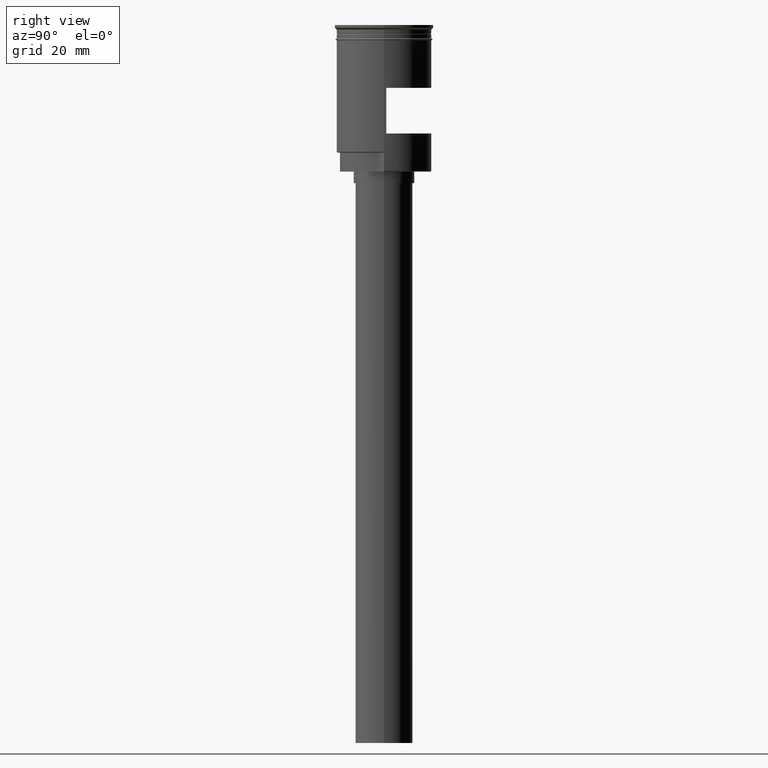
[diagram: clean part render]
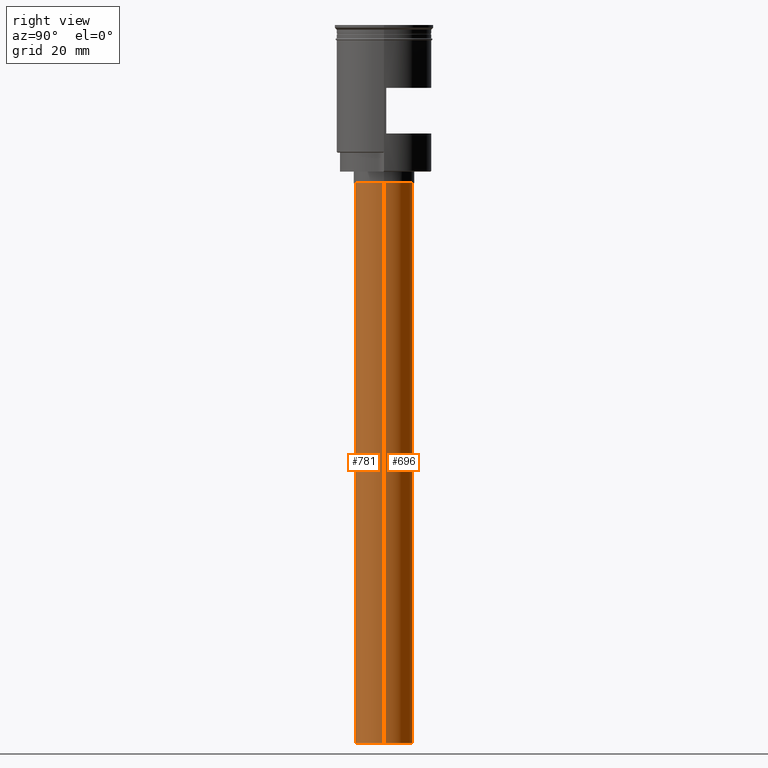
[diagram: same view with one multi-face feature highlighted, each face labeled with its STEP entity id]
A machine part, right view. The highlighted faces form ONE feature: a constant-radius fillet chain: 2 tangent blend faces with common blend radius 7.5 mm. The faces share edges in the B-rep.
Their STEP definitions:
[1] entity #696 (Cylinder):
#17 = CARTESIAN_POINT ( 'NONE',  ( -7.500000000000000000, 9.184850993605147944E-16, -188.5000000000000000 ) ) ;
#70 = DIRECTION ( 'NONE',  ( 1.000000000000000000, 0.000000000000000000, 0.000000000000000000 ) ) ;
#250 = DIRECTION ( 'NONE',  ( -1.000000000000000000, 0.000000000000000000, 0.000000000000000000 ) ) ;
#271 = CARTESIAN_POINT ( 'NONE',  ( 7.500000000000000000, 0.000000000000000000, -41.50000000000000000 ) ) ;
#347 = EDGE_CURVE ( 'NONE', #1243, #1359, #404, .T. ) ;
#353 = VECTOR ( 'NONE', #401, 1000.000000000000000 ) ;
#360 = CARTESIAN_POINT ( 'NONE',  ( -7.500000000000000000, 9.184850993605147944E-16, -41.50000000000000000 ) ) ;
#370 = ORIENTED_EDGE ( 'NONE', *, *, #903, .F. ) ;
#401 = DIRECTION ( 'NONE',  ( -0.000000000000000000, -0.000000000000000000, 1.000000000000000000 ) ) ;
#404 = CIRCLE ( 'NONE', #1304, 7.500000000000000000 ) ;
#437 = LINE ( 'NONE', #1529, #915 ) ;
#472 = CARTESIAN_POINT ( 'NONE',  ( 0.000000000000000000, 0.000000000000000000, -188.5000000000000000 ) ) ;
#500 = DIRECTION ( 'NONE',  ( 0.000000000000000000, 0.000000000000000000, -1.000000000000000000 ) ) ;
#552 = EDGE_CURVE ( 'NONE', #1373, #1243, #437, .T. ) ;
#626 = ORIENTED_EDGE ( 'NONE', *, *, #552, .T. ) ;
#640 = CARTESIAN_POINT ( 'NONE',  ( 7.500000000000000000, 0.000000000000000000, -188.5000000000000000 ) ) ;
#645 = DIRECTION ( 'NONE',  ( 0.000000000000000000, 0.000000000000000000, -1.000000000000000000 ) ) ;
#696 = ADVANCED_FACE ( 'NONE', ( #1561 ), #1085, .T. ) ;
#879 = LINE ( 'NONE', #640, #353 ) ;
#903 = EDGE_CURVE ( 'NONE', #1373, #1478, #1152, .T. ) ;
#915 = VECTOR ( 'NONE', #1423, 1000.000000000000000 ) ;
#933 = EDGE_CURVE ( 'NONE', #1478, #1359, #879, .T. ) ;
#962 = DIRECTION ( 'NONE',  ( -0.000000000000000000, -0.000000000000000000, 1.000000000000000000 ) ) ;
#1018 = DIRECTION ( 'NONE',  ( -1.000000000000000000, 0.000000000000000000, 0.000000000000000000 ) ) ;
#1084 = ORIENTED_EDGE ( 'NONE', *, *, #347, .T. ) ;
#1085 = CYLINDRICAL_SURFACE ( 'NONE', #1466, 7.500000000000000000 ) ;
#1152 = CIRCLE ( 'NONE', #1543, 7.500000000000000000 ) ;
#1159 = CARTESIAN_POINT ( 'NONE',  ( 0.000000000000000000, 0.000000000000000000, -188.5000000000000000 ) ) ;
#1191 = ORIENTED_EDGE ( 'NONE', *, *, #933, .F. ) ;
#1243 = VERTEX_POINT ( 'NONE', #360 ) ;
#1304 = AXIS2_PLACEMENT_3D ( 'NONE', #1590, #500, #250 ) ;
#1359 = VERTEX_POINT ( 'NONE', #271 ) ;
#1373 = VERTEX_POINT ( 'NONE', #17 ) ;
#1423 = DIRECTION ( 'NONE',  ( -0.000000000000000000, -0.000000000000000000, 1.000000000000000000 ) ) ;
#1427 = EDGE_LOOP ( 'NONE', ( #370, #626, #1084, #1191 ) ) ;
#1466 = AXIS2_PLACEMENT_3D ( 'NONE', #472, #962, #70 ) ;
#1478 = VERTEX_POINT ( 'NONE', #1564 ) ;
#1529 = CARTESIAN_POINT ( 'NONE',  ( -7.500000000000000000, 9.184850993605147944E-16, -188.5000000000000000 ) ) ;
#1543 = AXIS2_PLACEMENT_3D ( 'NONE', #1159, #645, #1018 ) ;
#1561 = FACE_OUTER_BOUND ( 'NONE', #1427, .T. ) ;
#1564 = CARTESIAN_POINT ( 'NONE',  ( 7.500000000000000000, 0.000000000000000000, -188.5000000000000000 ) ) ;
#1590 = CARTESIAN_POINT ( 'NONE',  ( 0.000000000000000000, 0.000000000000000000, -41.50000000000000000 ) ) ;
[2] entity #781 (Cylinder):
#2 = FACE_OUTER_BOUND ( 'NONE', #1502, .T. ) ;
#17 = CARTESIAN_POINT ( 'NONE',  ( -7.500000000000000000, 9.184850993605147944E-16, -188.5000000000000000 ) ) ;
#241 = DIRECTION ( 'NONE',  ( 0.000000000000000000, 0.000000000000000000, -1.000000000000000000 ) ) ;
#271 = CARTESIAN_POINT ( 'NONE',  ( 7.500000000000000000, 0.000000000000000000, -41.50000000000000000 ) ) ;
#336 = EDGE_CURVE ( 'NONE', #1359, #1243, #1413, .T. ) ;
#353 = VECTOR ( 'NONE', #401, 1000.000000000000000 ) ;
#360 = CARTESIAN_POINT ( 'NONE',  ( -7.500000000000000000, 9.184850993605147944E-16, -41.50000000000000000 ) ) ;
#401 = DIRECTION ( 'NONE',  ( -0.000000000000000000, -0.000000000000000000, 1.000000000000000000 ) ) ;
#407 = DIRECTION ( 'NONE',  ( -1.000000000000000000, 0.000000000000000000, 0.000000000000000000 ) ) ;
#431 = ORIENTED_EDGE ( 'NONE', *, *, #552, .F. ) ;
#437 = LINE ( 'NONE', #1529, #915 ) ;
#485 = DIRECTION ( 'NONE',  ( -1.000000000000000000, 0.000000000000000000, 0.000000000000000000 ) ) ;
#538 = AXIS2_PLACEMENT_3D ( 'NONE', #1141, #1404, #407 ) ;
#552 = EDGE_CURVE ( 'NONE', #1373, #1243, #437, .T. ) ;
#631 = CARTESIAN_POINT ( 'NONE',  ( 0.000000000000000000, 0.000000000000000000, -188.5000000000000000 ) ) ;
#633 = AXIS2_PLACEMENT_3D ( 'NONE', #1247, #241, #485 ) ;
#640 = CARTESIAN_POINT ( 'NONE',  ( 7.500000000000000000, 0.000000000000000000, -188.5000000000000000 ) ) ;
#765 = ORIENTED_EDGE ( 'NONE', *, *, #1446, .F. ) ;
#781 = ADVANCED_FACE ( 'NONE', ( #2 ), #1102, .T. ) ;
#879 = LINE ( 'NONE', #640, #353 ) ;
#915 = VECTOR ( 'NONE', #1423, 1000.000000000000000 ) ;
#917 = AXIS2_PLACEMENT_3D ( 'NONE', #631, #972, #1600 ) ;
#933 = EDGE_CURVE ( 'NONE', #1478, #1359, #879, .T. ) ;
#970 = CIRCLE ( 'NONE', #538, 7.500000000000000000 ) ;
#972 = DIRECTION ( 'NONE',  ( -0.000000000000000000, -0.000000000000000000, 1.000000000000000000 ) ) ;
#1102 = CYLINDRICAL_SURFACE ( 'NONE', #917, 7.500000000000000000 ) ;
#1141 = CARTESIAN_POINT ( 'NONE',  ( 0.000000000000000000, 0.000000000000000000, -188.5000000000000000 ) ) ;
#1243 = VERTEX_POINT ( 'NONE', #360 ) ;
#1247 = CARTESIAN_POINT ( 'NONE',  ( 0.000000000000000000, 0.000000000000000000, -41.50000000000000000 ) ) ;
#1359 = VERTEX_POINT ( 'NONE', #271 ) ;
#1373 = VERTEX_POINT ( 'NONE', #17 ) ;
#1390 = ORIENTED_EDGE ( 'NONE', *, *, #336, .T. ) ;
#1404 = DIRECTION ( 'NONE',  ( 0.000000000000000000, 0.000000000000000000, -1.000000000000000000 ) ) ;
#1413 = CIRCLE ( 'NONE', #633, 7.500000000000000000 ) ;
#1423 = DIRECTION ( 'NONE',  ( -0.000000000000000000, -0.000000000000000000, 1.000000000000000000 ) ) ;
#1446 = EDGE_CURVE ( 'NONE', #1478, #1373, #970, .T. ) ;
#1478 = VERTEX_POINT ( 'NONE', #1564 ) ;
#1493 = ORIENTED_EDGE ( 'NONE', *, *, #933, .T. ) ;
#1502 = EDGE_LOOP ( 'NONE', ( #431, #765, #1493, #1390 ) ) ;
#1529 = CARTESIAN_POINT ( 'NONE',  ( -7.500000000000000000, 9.184850993605147944E-16, -188.5000000000000000 ) ) ;
#1564 = CARTESIAN_POINT ( 'NONE',  ( 7.500000000000000000, 0.000000000000000000, -188.5000000000000000 ) ) ;
#1600 = DIRECTION ( 'NONE',  ( 1.000000000000000000, 0.000000000000000000, 0.000000000000000000 ) ) ;